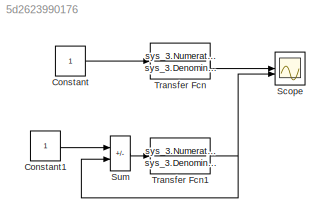
MODEL slx_5d2623990176
KIND model
CONFIG AbsTol = auto
CONFIG EnableMultiTasking = off
CONFIG FixedStep = auto
CONFIG MaxStep = auto
CONFIG MinStep = auto
CONFIG RelTol = 1e-3
CONFIG SampleTimeConstraint = Unconstrained
CONFIG SolverName = VariableStepAuto
CONFIG StartTime = 0.0
CONFIG StopTime = 13
BLOCK [Constant] Constant
BLOCK [Constant] Constant1
BLOCK [Scope] Scope
  Floating = off
  NumInputPorts = 2
  ScopeSpecificationString = Simulink.scopes.TimeScopeBlockCfg('CurrentConfiguration', extmgr.ConfigurationSet(extmgr.Configuration('Core','General UI',true,'FigureColor',[1 1 1]),extmgr.Configuration('Core','Source UI',true),extmgr.Configuration('Sources','WiredSimulink',true),extmgr.Configuration('Visuals','Time Domain',true,'SerializedDisplays',{struct('MinYLimReal','-4480570.08858','MaxYLimReal','40325135.79724','YLabelRe...<+1711ch>
BLOCK [Sum] Sum
  IconShape = rectangular
  Inputs = +-
BLOCK [TransferFcn] Transfer Fcn
  Denominator = sys_3.Denominator{1, 1}
  Numerator = sys_3.Numerator{1, 1}
BLOCK [TransferFcn] Transfer Fcn1
  Denominator = sys_3.Denominator{1, 1}
  Numerator = sys_3.Numerator{1, 1}
LINE Constant1:1 -> Sum:1
LINE Constant:1 -> Transfer Fcn:1
LINE Sum:1 -> Transfer Fcn1:1
NET Transfer Fcn1:1 -> Scope:2, Sum:2
LINE Transfer Fcn:1 -> Scope:1
note: NET lines group one-source signal fan-out (src -> all destinations, sorted); 1:1 wires keep LINE
